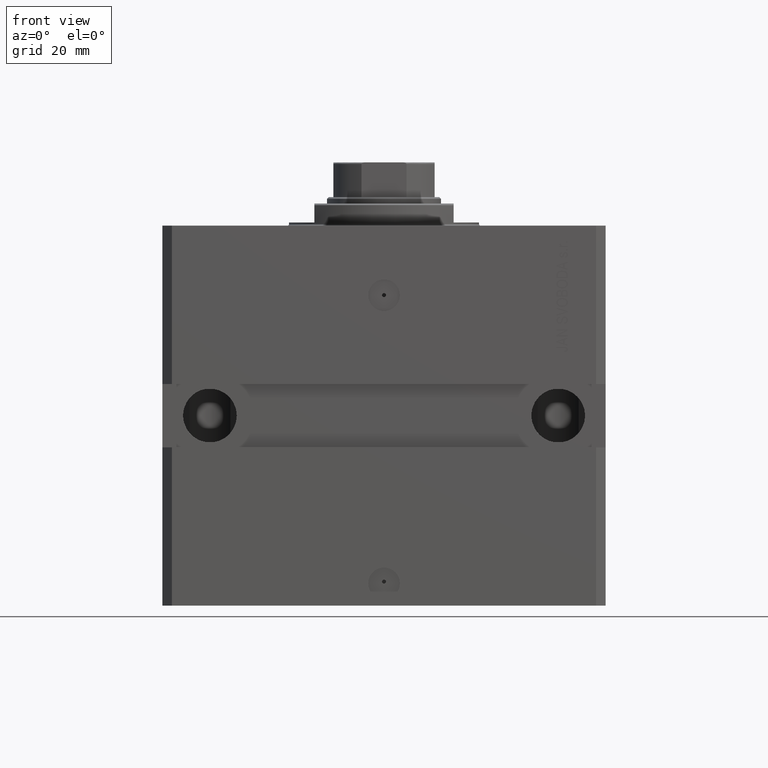
[diagram: clean part render]
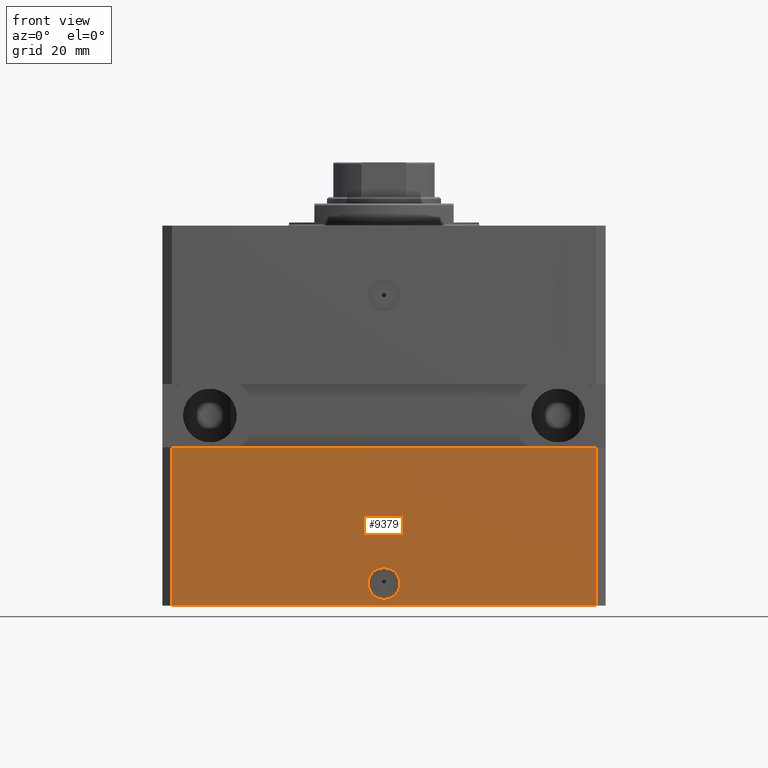
[diagram: same view with one face highlighted and labeled with its STEP entity id]
A machine part, front view. The second image highlights one B-rep face of the part: STEP entity #9379.
In plain terms, the highlighted planar face has unit normal (0, -1, 0).
Its self-contained STEP definition (entity closure, byte-faithful):
#631 = EDGE_CURVE ( 'NONE', #18874, #19887, #12817, .T. ) ;
#2461 = ORIENTED_EDGE ( 'NONE', *, *, #6946, .F. ) ;
#3215 = DIRECTION ( 'NONE',  ( 1.000000000000000000, 0.000000000000000000, 0.000000000000000000 ) ) ;
#5314 = EDGE_CURVE ( 'NONE', #35284, #15459, #23714, .T. ) ;
#5410 = CARTESIAN_POINT ( 'NONE',  ( 67.00000000000001421, -54.99999999999997868, -70.00000000000000000 ) ) ;
#5651 = EDGE_CURVE ( 'NONE', #19887, #18056, #17917, .T. ) ;
#5916 = CARTESIAN_POINT ( 'NONE',  ( -67.00000000000001421, -55.00000000000000000, -120.0000000000000000 ) ) ;
#6946 = EDGE_CURVE ( 'NONE', #18874, #11395, #30983, .T. ) ;
#8531 = DIRECTION ( 'NONE',  ( 0.000000000000000000, 0.000000000000000000, 1.000000000000000000 ) ) ;
#9273 = EDGE_LOOP ( 'NONE', ( #20919, #28261 ) ) ;
#9379 = ADVANCED_FACE ( 'NONE', ( #24665, #46155 ), #32073, .T. ) ;
#10318 = AXIS2_PLACEMENT_3D ( 'NONE', #11536, #22890, #37932 ) ;
#11330 = EDGE_CURVE ( 'NONE', #11395, #18056, #34483, .T. ) ;
#11395 = VERTEX_POINT ( 'NONE', #36418 ) ;
#11536 = CARTESIAN_POINT ( 'NONE',  ( 8.544160404064867231E-15, -54.99999999999998579, -112.9999999999999858 ) ) ;
#12817 = LINE ( 'NONE', #43366, #35403 ) ;
#15186 = ORIENTED_EDGE ( 'NONE', *, *, #11330, .F. ) ;
#15239 = CARTESIAN_POINT ( 'NONE',  ( -70.00000000000001421, -54.99999999999999289, -70.00000000000000000 ) ) ;
#15459 = VERTEX_POINT ( 'NONE', #27990 ) ;
#15733 = DIRECTION ( 'NONE',  ( 1.000000000000000000, 9.912705577010323084E-17, 0.000000000000000000 ) ) ;
#15948 = EDGE_CURVE ( 'NONE', #15459, #35284, #26467, .T. ) ;
#16203 = CARTESIAN_POINT ( 'NONE',  ( 5.000000000000015099, -54.99999999999998579, -112.9999999999999858 ) ) ;
#16790 = DIRECTION ( 'NONE',  ( 1.000000000000000000, 1.553483709829976241E-16, 0.000000000000000000 ) ) ;
#17917 = LINE ( 'NONE', #25789, #34069 ) ;
#18056 = VERTEX_POINT ( 'NONE', #5410 ) ;
#18874 = VERTEX_POINT ( 'NONE', #37681 ) ;
#19887 = VERTEX_POINT ( 'NONE', #48547 ) ;
#20919 = ORIENTED_EDGE ( 'NONE', *, *, #5314, .F. ) ;
#21625 = ORIENTED_EDGE ( 'NONE', *, *, #631, .T. ) ;
#22890 = DIRECTION ( 'NONE',  ( 1.176083712526788232E-16, -1.000000000000000000, 0.000000000000000000 ) ) ;
#23714 = CIRCLE ( 'NONE', #10318, 5.000000000000006217 ) ;
#24665 = FACE_BOUND ( 'NONE', #9273, .T. ) ;
#25789 = CARTESIAN_POINT ( 'NONE',  ( 67.00000000000001421, -54.99999999999997868, -120.0000000000000000 ) ) ;
#26395 = CARTESIAN_POINT ( 'NONE',  ( 8.544160404064867231E-15, -54.99999999999998579, -112.9999999999999858 ) ) ;
#26467 = CIRCLE ( 'NONE', #46935, 5.000000000000006217 ) ;
#27288 = CARTESIAN_POINT ( 'NONE',  ( -67.00000000000001421, -55.00000000000000000, -120.0000000000000000 ) ) ;
#27990 = CARTESIAN_POINT ( 'NONE',  ( -4.999999999999997335, -54.99999999999998579, -112.9999999999999858 ) ) ;
#28261 = ORIENTED_EDGE ( 'NONE', *, *, #15948, .F. ) ;
#30229 = DIRECTION ( 'NONE',  ( 0.000000000000000000, 0.000000000000000000, 1.000000000000000000 ) ) ;
#30983 = LINE ( 'NONE', #27288, #32602 ) ;
#32073 = PLANE ( 'NONE',  #37397 ) ;
#32602 = VECTOR ( 'NONE', #8531, 1000.000000000000000 ) ;
#34069 = VECTOR ( 'NONE', #30229, 1000.000000000000000 ) ;
#34483 = LINE ( 'NONE', #15239, #48487 ) ;
#35284 = VERTEX_POINT ( 'NONE', #16203 ) ;
#35403 = VECTOR ( 'NONE', #43127, 1000.000000000000000 ) ;
#36418 = CARTESIAN_POINT ( 'NONE',  ( -67.00000000000002842, -54.99999999999999289, -70.00000000000000000 ) ) ;
#36764 = DIRECTION ( 'NONE',  ( 1.176083712526788232E-16, -1.000000000000000000, 0.000000000000000000 ) ) ;
#37397 = AXIS2_PLACEMENT_3D ( 'NONE', #5916, #38748, #16790 ) ;
#37681 = CARTESIAN_POINT ( 'NONE',  ( -67.00000000000001421, -55.00000000000000000, -120.0000000000000000 ) ) ;
#37932 = DIRECTION ( 'NONE',  ( 1.000000000000000000, 0.000000000000000000, 0.000000000000000000 ) ) ;
#38748 = DIRECTION ( 'NONE',  ( 1.553483709829976241E-16, -1.000000000000000000, 0.000000000000000000 ) ) ;
#40068 = EDGE_LOOP ( 'NONE', ( #15186, #2461, #21625, #47319 ) ) ;
#43127 = DIRECTION ( 'NONE',  ( 1.000000000000000000, 1.553483709829976241E-16, 0.000000000000000000 ) ) ;
#43366 = CARTESIAN_POINT ( 'NONE',  ( -67.00000000000001421, -55.00000000000000000, -120.0000000000000000 ) ) ;
#46155 = FACE_OUTER_BOUND ( 'NONE', #40068, .T. ) ;
#46935 = AXIS2_PLACEMENT_3D ( 'NONE', #26395, #36764, #3215 ) ;
#47319 = ORIENTED_EDGE ( 'NONE', *, *, #5651, .T. ) ;
#48487 = VECTOR ( 'NONE', #15733, 1000.000000000000000 ) ;
#48547 = CARTESIAN_POINT ( 'NONE',  ( 67.00000000000001421, -54.99999999999997868, -120.0000000000000000 ) ) ;